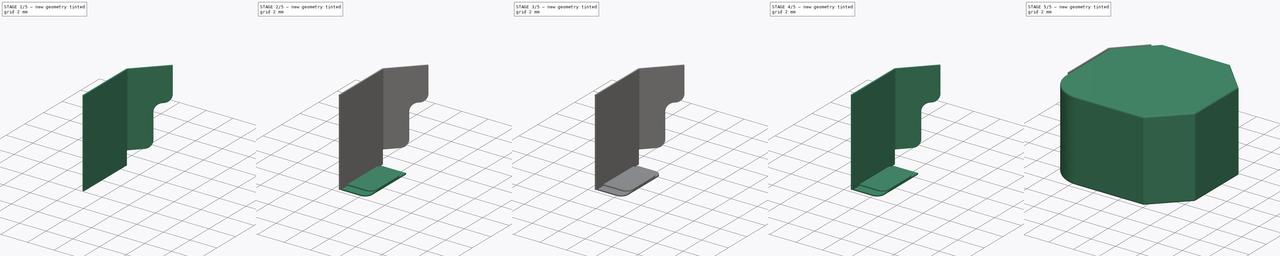
[diagram: build sequence overview — one tinted view per stage of 5, left to right]
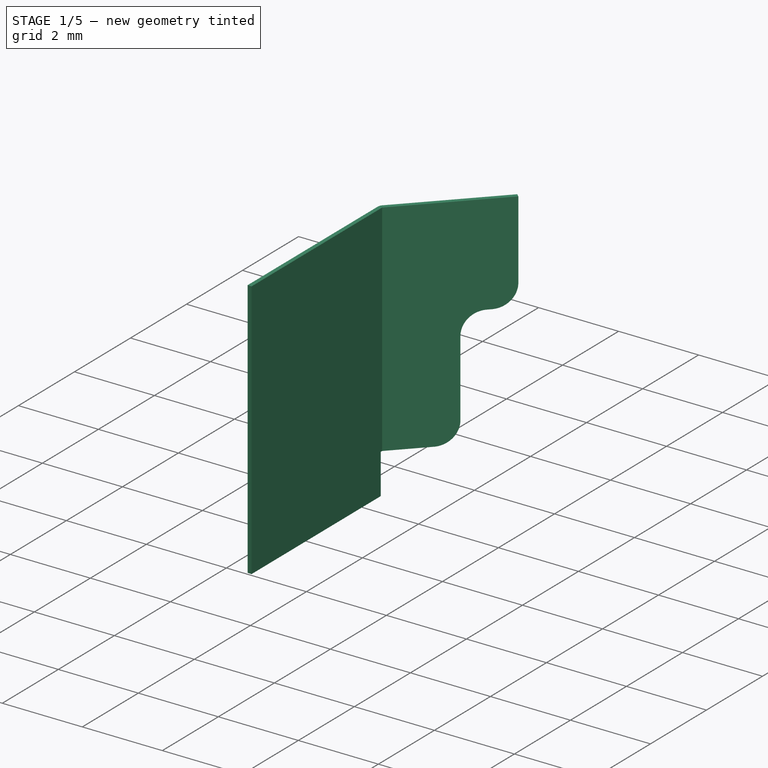
[diagram: stage 1 of 5 — iso view after this stage's code; geometry added in this stage tinted green]
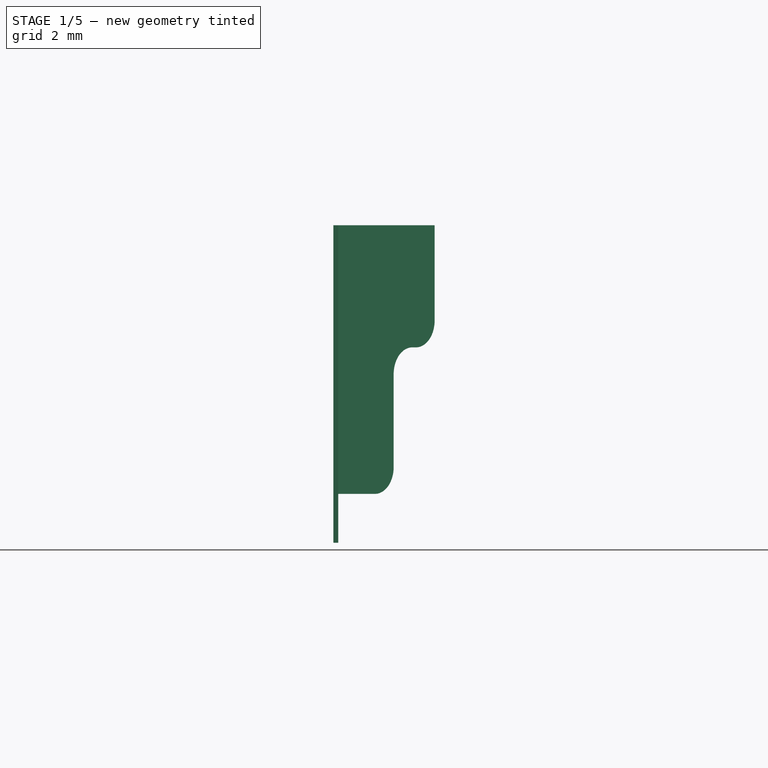
[diagram: stage 1 of 5 — front view after this stage's code; geometry added in this stage tinted green]
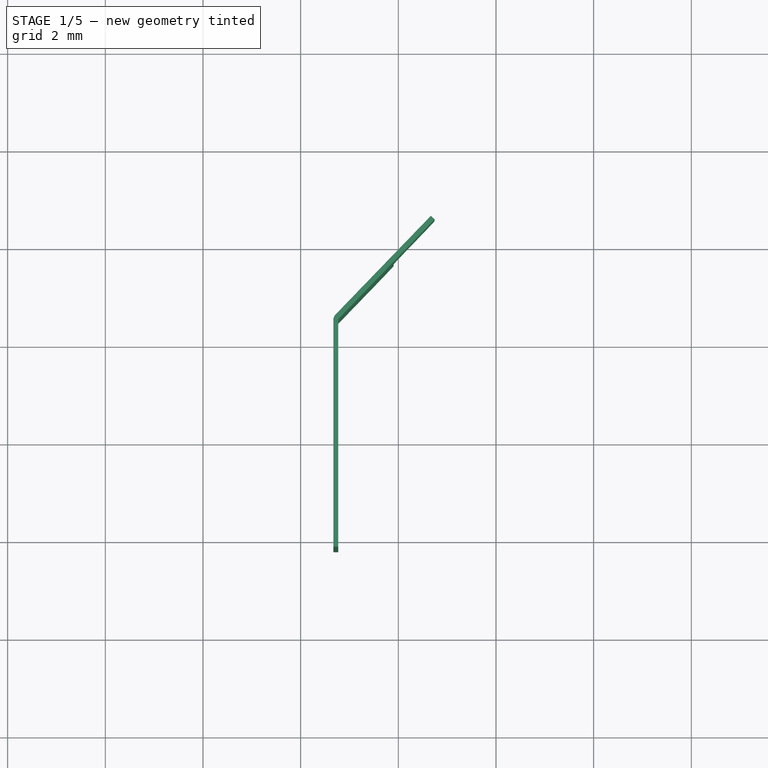
[diagram: stage 1 of 5 — top view after this stage's code; geometry added in this stage tinted green]
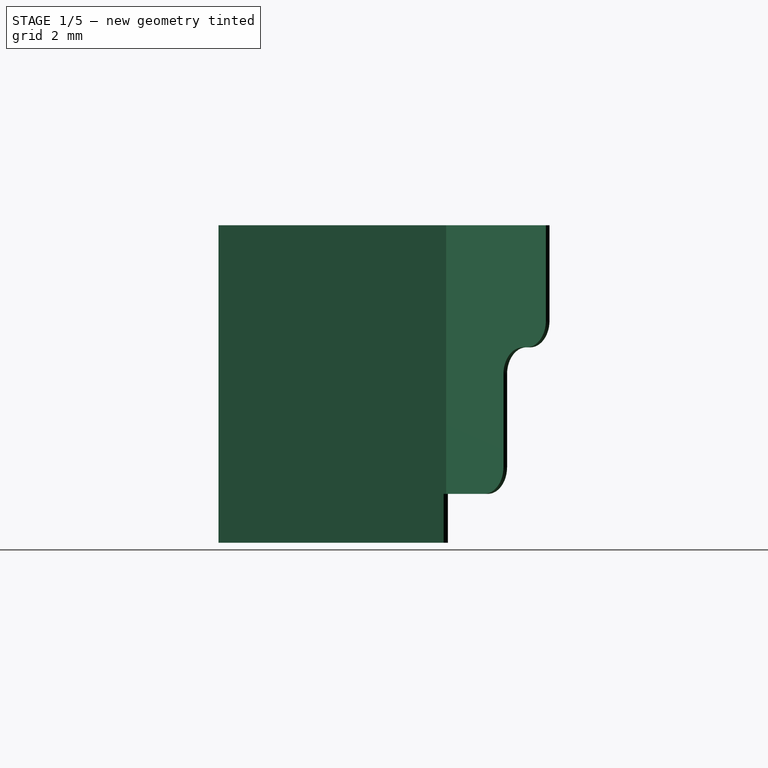
[diagram: stage 1 of 5 — right view after this stage's code; geometry added in this stage tinted green]
FCSTD DOCUMENT  (FreeCAD 0.19R24291 (Git))
Label: tdk-SPM10065VT-D-inductors-for-power-circuits-wound-metal
License: All rights reserved
LicenseURL: http://en.wikipedia.org/wiki/All_rights_reserved
objects: PartDesign::Fillet×16, PartDesign::Pad×11, Sketcher::SketchObject×9, PartDesign::Body×9, App::Part×3, PartDesign::AdditiveSphere×2, PartDesign::Pocket×2
note: 80 computed .brp shape members not serialized (recipe doc carries the construction recipe); baked Part::Feature solids carry a one-line shape summary decoded from their .brp

FEATURE [PartDesign::Body] Body003  label="MainPart"
  Group = -> [Sketch001,Pad001,Pad002,Pad003,Fillet002,Sketch004,Pocket,Fillet008]
  Origin = -> Origin004
  Tip = -> Fillet008
FEATURE [App::Part] Part001  label="Electrode1"
  Group = -> [Body003,Body004,Body005]
  Origin = -> Origin005
  Placement = pos=(0,0,0.1) rot=(0,0,1;0rad)
FEATURE [Sketcher::SketchObject] Sketch005
  FullyConstrained = false
  MapMode = 5
  Support = -> [XY_Plane008]
  sketch-geometry (6):
    g0: LineSegment StartX=-5.33 StartY=-2.2 StartZ=0 EndX=-5.33 EndY=2.51 EndZ=0
    g1: LineSegment StartX=-5.23 StartY=-2.2 StartZ=0 EndX=-5.23 EndY=2.46 EndZ=0
    g2: LineSegment StartX=-3.33283 StartY=4.57813 StartZ=0 EndX=-5.33 EndY=2.51 EndZ=0
    g3: LineSegment StartX=-5.33 StartY=-2.2 StartZ=0 EndX=-5.23 EndY=-2.2 EndZ=0
    g4: LineSegment StartX=-3.33283 StartY=4.57813 StartZ=0 EndX=-3.2561 EndY=4.50404 EndZ=0
    g5: LineSegment StartX=-3.2561 StartY=4.50404 StartZ=0 EndX=-5.23 EndY=2.46 EndZ=0
  constraints (17):
    c: Vertical(g0)
    c: Vertical(g1)
    c: Coincident(g2,g0)
    c: Coincident(g3,g0)
    c: Coincident(g3,g1)
    c: Horizontal(g3)
    c: Coincident(g4,g2)
    c: Coincident(g5,g4)
    c: Coincident(g5,g1)
    c: Distance(g3) = 0.1
    c: DistanceX(g-2,g1) = -5.23
    c: DistanceY(g-1,g1) = 2.46
    c: DistanceY(g1,g0) = 0.05
    c: Perpendicular(g5,g4)
    c: Perpendicular(g2,g4)
    c: Angle(g1,g5) = 2.37365
    c: DistanceY(g0,g-1) = 2.2
FEATURE [PartDesign::Pad] Pad006
  Direction = (1,1,1)
  Length = 0.1
  Length2 = 100
  Profile = -> Sketch005
  Type = 0
FEATURE [PartDesign::Pad] Pad007
  BaseFeature = -> Pad006
  Direction = (1,1,1)
  Length = 6.3
  Length2 = 100
  Profile = -> Pad006 [Face8]
  Type = 0
FEATURE [PartDesign::Pad] Pad008
  BaseFeature = -> Pad007
  Direction = (1,1,1)
  Length = 0.1
  Length2 = 100
  Profile = -> Pad007 [Face11]
  Type = 0
FEATURE [PartDesign::Fillet] Fillet009
  Base = -> Pad008 [Edge5,Edge31,Edge19]
  BaseFeature = -> Pad008
  Radius = 0.15
  SupportTransform = false
FEATURE [PartDesign::Body] Body008  label="TopPart001"
  Group = -> [Sketch007,Pad010,Fillet013,Fillet014]
  Origin = -> Origin011
  Placement = pos=(0,0,6.5) rot=(0,0,1;0rad)
  Tip = -> Fillet014
FEATURE [Sketcher::SketchObject] Sketch008
  FullyConstrained = true
  MapMode = 5
  Placement = pos=(-4.01224,3.87458,0) rot=(-0.287479,0.677258,0.677258;3.70145rad)
  Support = -> [Fillet009]
  sketch-geometry (6):
    g0: LineSegment StartX=1.9 StartY=-0.1 StartZ=0 EndX=1.9 EndY=1 EndZ=0
    g1: LineSegment StartX=1.9 StartY=1 StartZ=0 EndX=0.23 EndY=1 EndZ=0
    g2: LineSegment StartX=0.23 StartY=1 StartZ=0 EndX=0.23 EndY=4 EndZ=0
    g3: LineSegment StartX=-1 StartY=4 StartZ=0 EndX=-1 EndY=-0.1 EndZ=0
    g4: LineSegment StartX=-1 StartY=-0.1 StartZ=0 EndX=1.9 EndY=-0.1 EndZ=0
    g5: LineSegment StartX=0.23 StartY=4 StartZ=0 EndX=-1 EndY=4 EndZ=0
  constraints (18):
    c: Vertical(g0)
    c: Coincident(g1,g0)
    c: Horizontal(g1)
    c: Coincident(g2,g1)
    c: Vertical(g2)
    c: Vertical(g3)
    c: Coincident(g4,g3)
    c: Coincident(g4,g0)
    c: Horizontal(g4)
    c: Coincident(g5,g2)
    c: Coincident(g5,g3)
    c: Horizontal(g5)
    c: Distance(g3,g0) = 2.9
    c: DistanceX(g-1,g0) = 1.9
    c: Distance(g1) = 1.67
    c: Distance(g3) = 4.1
    c: Distance(g2) = 3
    c: DistanceY(g-1,g0) = 1
FEATURE [PartDesign::Pocket] Pocket001
  BaseFeature = -> Fillet009
  Length = 5
  Length2 = 100
  Profile = -> Sketch008
  Type = 0
FEATURE [PartDesign::Fillet] Fillet015
  Base = -> Pocket001 [Edge54,Edge52,Edge33]
  BaseFeature = -> Pocket001
  Radius = 0.55
  SupportTransform = false
FEATURE [PartDesign::Body] Body006  label="MainPart001"
  Group = -> [Sketch005,Pad006,Pad007,Pad008,Fillet009,Sketch008,Pocket001,Fillet015]
  Origin = -> Origin008
  Tip = -> Fillet015
FEATURE [App::Part] Part002  label="Electrode2"
  Group = -> [Body006,Body007,Body008]
  Origin = -> Origin009
  Placement = pos=(0,0,0.1) rot=(0,0,1;3.14159rad)
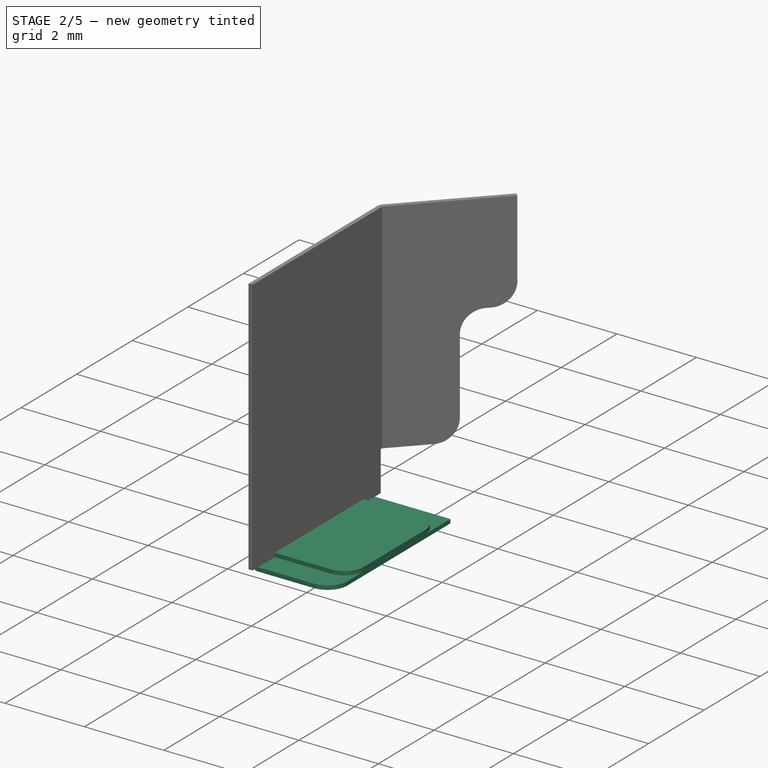
[diagram: stage 2 of 5 — iso view after this stage's code; geometry added in this stage tinted green]
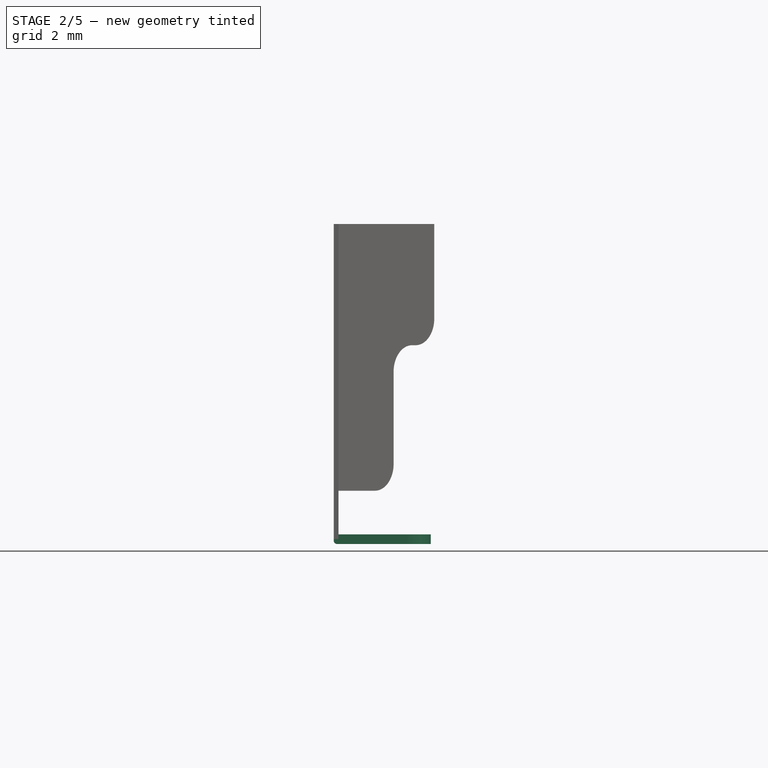
[diagram: stage 2 of 5 — front view after this stage's code; geometry added in this stage tinted green]
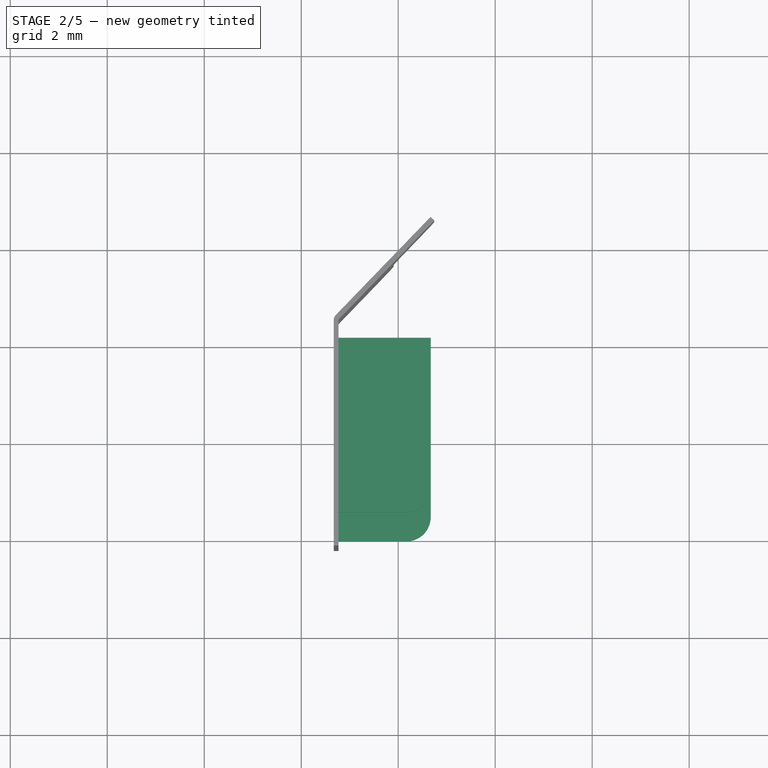
[diagram: stage 2 of 5 — top view after this stage's code; geometry added in this stage tinted green]
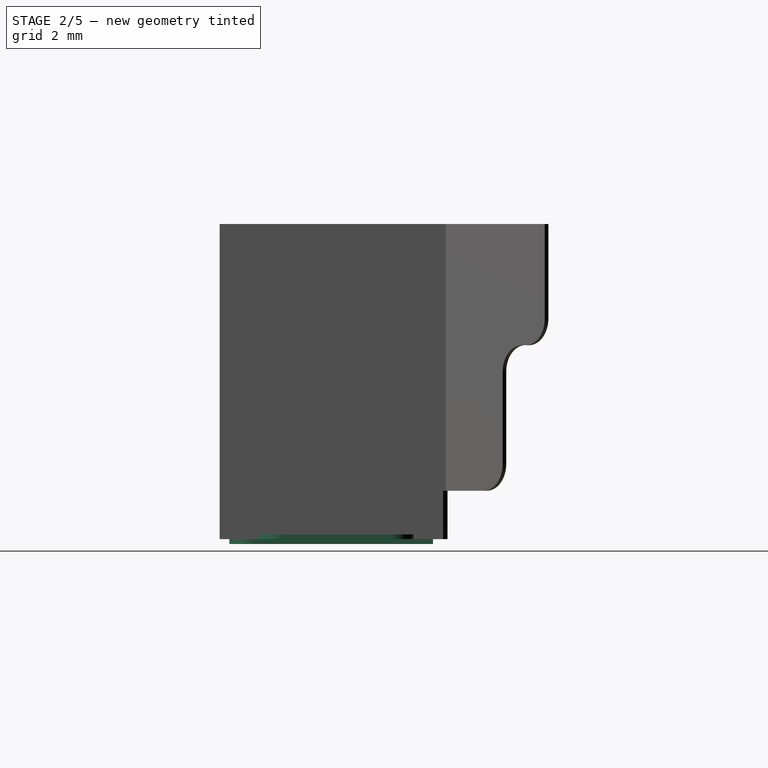
[diagram: stage 2 of 5 — right view after this stage's code; geometry added in this stage tinted green]
FEATURE [Sketcher::SketchObject] Sketch006
  FullyConstrained = true
  MapMode = 5
  Support = -> [XY_Plane010]
  sketch-geometry (4):
    g0: LineSegment StartX=-5.33 StartY=2.2 StartZ=0 EndX=-3.33 EndY=2.2 EndZ=0
    g1: LineSegment StartX=-3.33 StartY=2.2 StartZ=0 EndX=-3.33 EndY=-2 EndZ=0
    g2: LineSegment StartX=-3.33 StartY=-2 StartZ=0 EndX=-5.33 EndY=-2 EndZ=0
    g3: LineSegment StartX=-5.33 StartY=-2 StartZ=0 EndX=-5.33 EndY=2.2 EndZ=0
  constraints (12):
    c: Coincident(g0,g1)
    c: Coincident(g1,g2)
    c: Coincident(g2,g3)
    c: Coincident(g3,g0)
    c: Horizontal(g0)
    c: Horizontal(g2)
    c: Vertical(g1)
    c: Vertical(g3)
    c: Distance(g0,g2) = 4.2
    c: Distance(g2,g1) = 2
    c: DistanceX(g2,g-1) = 5.33
    c: DistanceY(g1,g-1) = 2
FEATURE [PartDesign::Pad] Pad009
  Direction = (0,1,1)
  Length = 0.1
  Length2 = 100
  Profile = -> Sketch006
  Reversed = true
  Type = 0
FEATURE [PartDesign::Fillet] Fillet010
  Base = -> Pad009 [Edge12]
  BaseFeature = -> Pad009
  Radius = 0.07
  SupportTransform = false
FEATURE [PartDesign::Fillet] Fillet011
  Base = -> Fillet010 [Edge15]
  BaseFeature = -> Fillet010
  Radius = 0.5
  SupportTransform = false
FEATURE [PartDesign::Body] Body007  label="BottomPart001"
  Group = -> [Sketch006,Pad009,Fillet010,Fillet011,Fillet012]
  Origin = -> Origin010
  Tip = -> Fillet012
FEATURE [Sketcher::SketchObject] Sketch007
  FullyConstrained = true
  MapMode = 5
  Support = -> [XY_Plane011]
  sketch-geometry (4):
    g0: LineSegment StartX=-3.33 StartY=1.8 StartZ=0 EndX=-5.33 EndY=1.8 EndZ=0
    g1: LineSegment StartX=-5.33 StartY=1.8 StartZ=0 EndX=-5.33 EndY=-1.4 EndZ=0
    g2: LineSegment StartX=-5.33 StartY=-1.4 StartZ=0 EndX=-3.33 EndY=-1.4 EndZ=0
    g3: LineSegment StartX=-3.33 StartY=-1.4 StartZ=0 EndX=-3.33 EndY=1.8 EndZ=0
  constraints (12):
    c: Coincident(g0,g1)
    c: Coincident(g1,g2)
    c: Coincident(g2,g3)
    c: Coincident(g3,g0)
    c: Horizontal(g0)
    c: Horizontal(g2)
    c: Vertical(g1)
    c: Vertical(g3)
    c: Distance(g1,g0) = 3.2
    c: Distance(g1,g2) = 2
    c: DistanceY(g1,g-1) = 1.4
    c: DistanceX(g1,g-1) = 5.33
FEATURE [PartDesign::Pad] Pad010
  Direction = (1,1,1)
  Length = 0.1
  Length2 = 100
  Profile = -> Sketch007
  Type = 0
FEATURE [PartDesign::Fillet] Fillet013
  Base = -> Pad010 [Edge8,Edge1]
  BaseFeature = -> Pad010
  Radius = 0.5
  SupportTransform = false
FEATURE [PartDesign::Fillet] Fillet014
  Base = -> Fillet013 [Edge13]
  BaseFeature = -> Fillet013
  Radius = 0.07
  SupportTransform = false
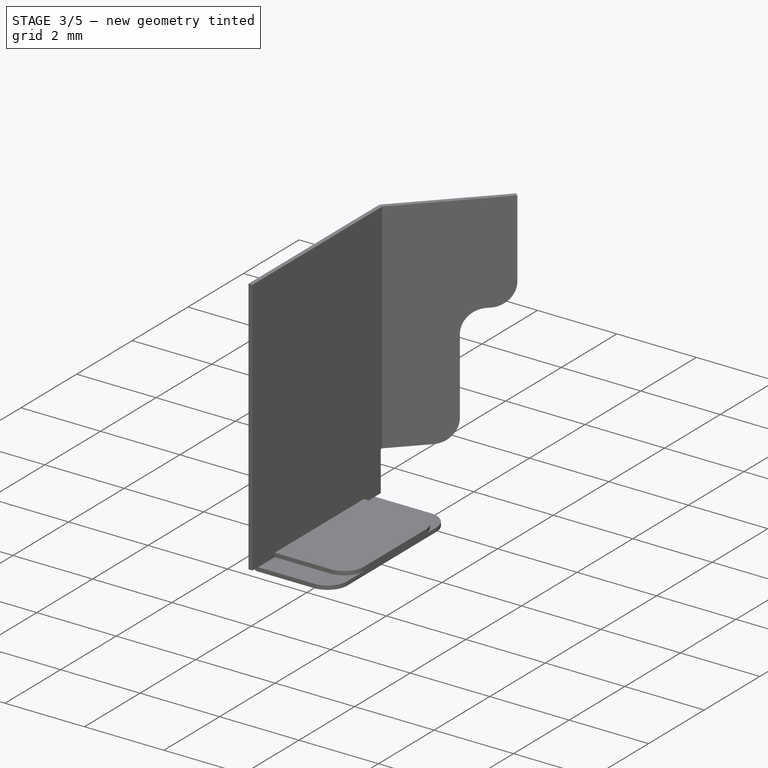
[diagram: stage 3 of 5 — iso view after this stage's code; geometry added in this stage tinted green]
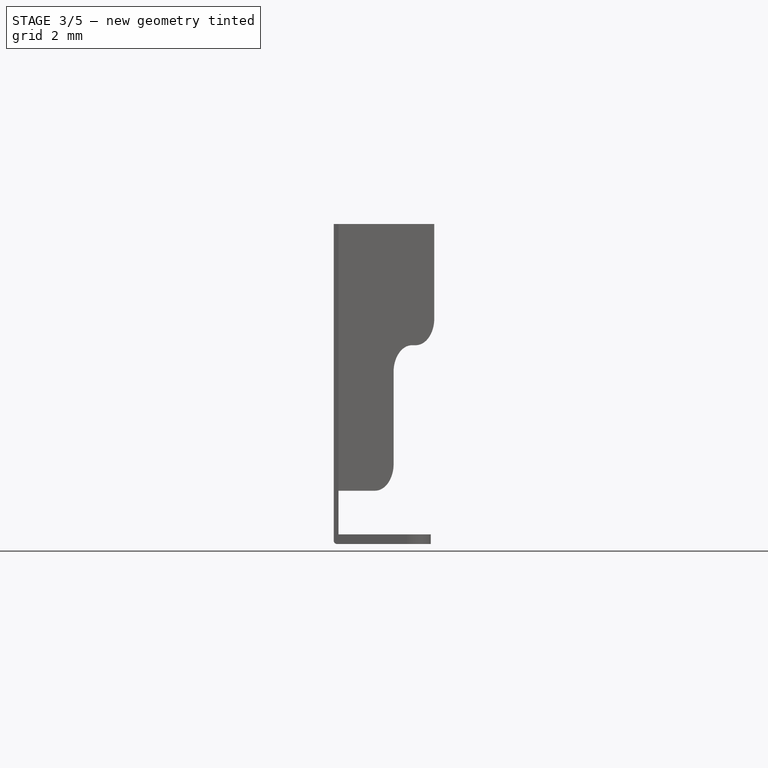
[diagram: stage 3 of 5 — front view after this stage's code; geometry added in this stage tinted green]
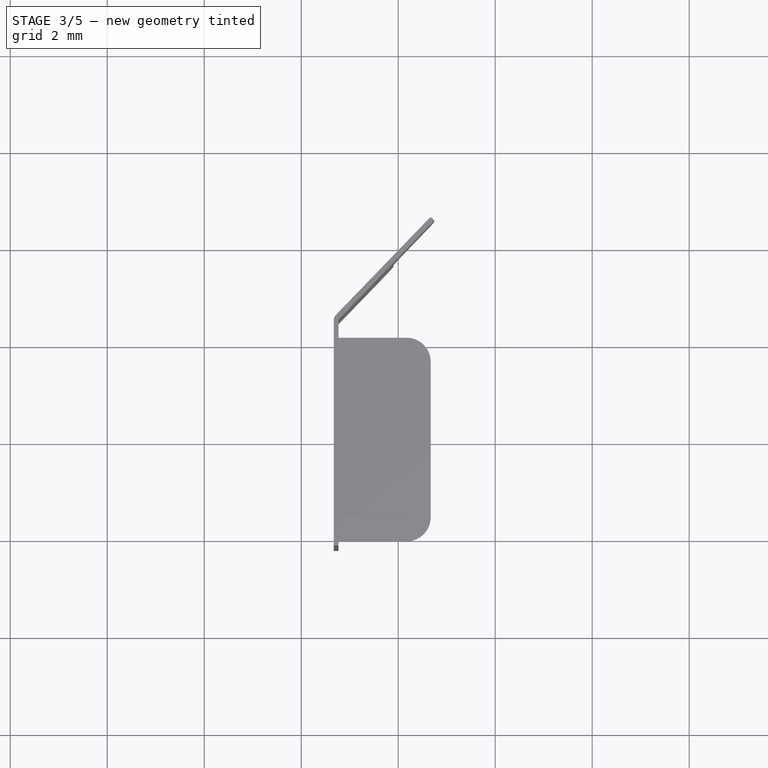
[diagram: stage 3 of 5 — top view after this stage's code; geometry added in this stage tinted green]
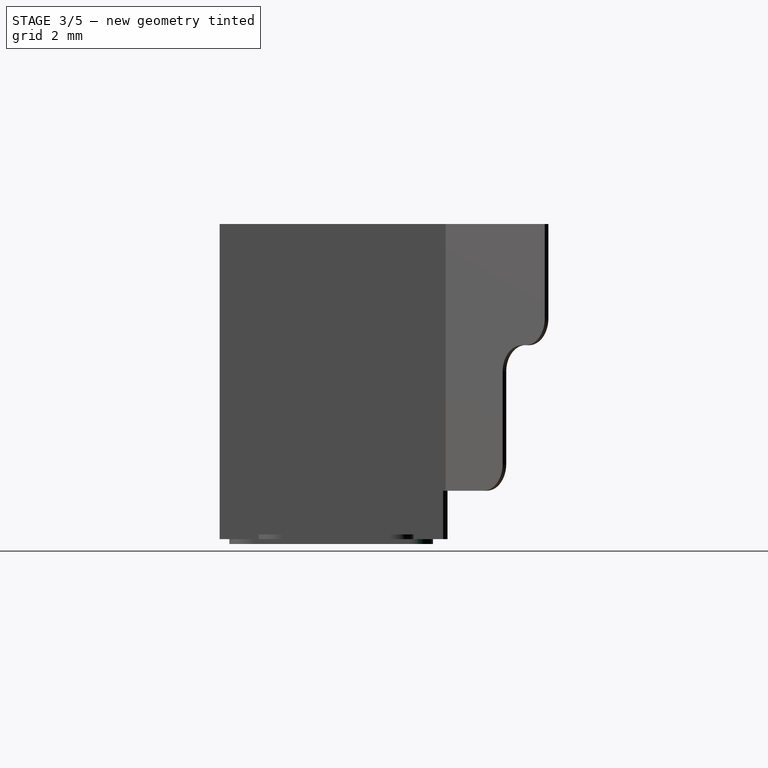
[diagram: stage 3 of 5 — right view after this stage's code; geometry added in this stage tinted green]
FEATURE [PartDesign::Body] Body002  label="WireEnd2"
  Group = -> [Sphere001]
  Origin = -> Origin003
  Placement = pos=(4,-3.75,4) rot=(0,0,1;0rad)
  Tip = -> Sphere001
FEATURE [App::Part] Part
  Group = -> [Body,Body001,Body002]
  Origin = -> Origin
  Placement = pos=(0,0,0.1) rot=(0,0,1;0rad)
FEATURE [Sketcher::SketchObject] Sketch001
  FullyConstrained = false
  MapMode = 5
  Support = -> [XY_Plane004]
  sketch-geometry (6):
    g0: LineSegment StartX=-5.33 StartY=-2.2 StartZ=0 EndX=-5.33 EndY=2.51 EndZ=0
    g1: LineSegment StartX=-5.23 StartY=-2.2 StartZ=0 EndX=-5.23 EndY=2.46 EndZ=0
    g2: LineSegment StartX=-3.33283 StartY=4.57813 StartZ=0 EndX=-5.33 EndY=2.51 EndZ=0
    g3: LineSegment StartX=-5.33 StartY=-2.2 StartZ=0 EndX=-5.23 EndY=-2.2 EndZ=0
    g4: LineSegment StartX=-3.33283 StartY=4.57813 StartZ=0 EndX=-3.2561 EndY=4.50404 EndZ=0
    g5: LineSegment StartX=-3.2561 StartY=4.50404 StartZ=0 EndX=-5.23 EndY=2.46 EndZ=0
  constraints (17):
    c: Vertical(g0)
    c: Vertical(g1)
    c: Coincident(g2,g0)
    c: Coincident(g3,g0)
    c: Coincident(g3,g1)
    c: Horizontal(g3)
    c: Coincident(g4,g2)
    c: Coincident(g5,g4)
    c: Coincident(g5,g1)
    c: Distance(g3) = 0.1
    c: DistanceX(g-2,g1) = -5.23
    c: DistanceY(g-1,g1) = 2.46
    c: DistanceY(g1,g0) = 0.05
    c: Perpendicular(g5,g4)
    c: Perpendicular(g2,g4)
    c: Angle(g1,g5) = 2.37365
    c: DistanceY(g0,g-1) = 2.2
FEATURE [PartDesign::Pad] Pad001
  Direction = (1,1,1)
  Length = 0.1
  Length2 = 100
  Profile = -> Sketch001
  Type = 0
FEATURE [PartDesign::Pad] Pad002
  BaseFeature = -> Pad001
  Direction = (1,1,1)
  Length = 6.3
  Length2 = 100
  Profile = -> Pad001 [Face8]
  Type = 0
FEATURE [PartDesign::Pad] Pad003
  BaseFeature = -> Pad002
  Direction = (1,1,1)
  Length = 0.1
  Length2 = 100
  Profile = -> Pad002 [Face11]
  Type = 0
FEATURE [PartDesign::Fillet] Fillet002
  Base = -> Pad003 [Edge5,Edge31,Edge19]
  BaseFeature = -> Pad003
  Radius = 0.15
  SupportTransform = false
FEATURE [PartDesign::Body] Body005  label="TopPart"
  Group = -> [Sketch003,Pad005,Fillet006,Fillet007]
  Origin = -> Origin007
  Placement = pos=(0,0,6.5) rot=(0,0,1;0rad)
  Tip = -> Fillet007
FEATURE [Sketcher::SketchObject] Sketch004
  FullyConstrained = true
  MapMode = 5
  Placement = pos=(-4.01224,3.87458,0) rot=(-0.287479,0.677258,0.677258;3.70145rad)
  Support = -> [Fillet002]
  sketch-geometry (6):
    g0: LineSegment StartX=1.9 StartY=-0.1 StartZ=0 EndX=1.9 EndY=1 EndZ=0
    g1: LineSegment StartX=1.9 StartY=1 StartZ=0 EndX=0.23 EndY=1 EndZ=0
    g2: LineSegment StartX=0.23 StartY=1 StartZ=0 EndX=0.23 EndY=4 EndZ=0
    g3: LineSegment StartX=-1 StartY=4 StartZ=0 EndX=-1 EndY=-0.1 EndZ=0
    g4: LineSegment StartX=-1 StartY=-0.1 StartZ=0 EndX=1.9 EndY=-0.1 EndZ=0
    g5: LineSegment StartX=0.23 StartY=4 StartZ=0 EndX=-1 EndY=4 EndZ=0
  constraints (18):
    c: Vertical(g0)
    c: Coincident(g1,g0)
    c: Horizontal(g1)
    c: Coincident(g2,g1)
    c: Vertical(g2)
    c: Vertical(g3)
    c: Coincident(g4,g3)
    c: Coincident(g4,g0)
    c: Horizontal(g4)
    c: Coincident(g5,g2)
    c: Coincident(g5,g3)
    c: Horizontal(g5)
    c: Distance(g3,g0) = 2.9
    c: DistanceX(g-1,g0) = 1.9
    c: Distance(g1) = 1.67
    c: Distance(g3) = 4.1
    c: Distance(g2) = 3
    c: DistanceY(g-1,g0) = 1
FEATURE [PartDesign::Pocket] Pocket
  BaseFeature = -> Fillet002
  Length = 5
  Length2 = 100
  Profile = -> Sketch004
  Type = 0
FEATURE [PartDesign::Fillet] Fillet008
  Base = -> Pocket [Edge54,Edge52,Edge33]
  BaseFeature = -> Pocket
  Radius = 0.55
  SupportTransform = false
FEATURE [PartDesign::Fillet] Fillet012
  Base = -> Fillet011 [Edge7]
  BaseFeature = -> Fillet011
  Radius = 0.5
  SupportTransform = false
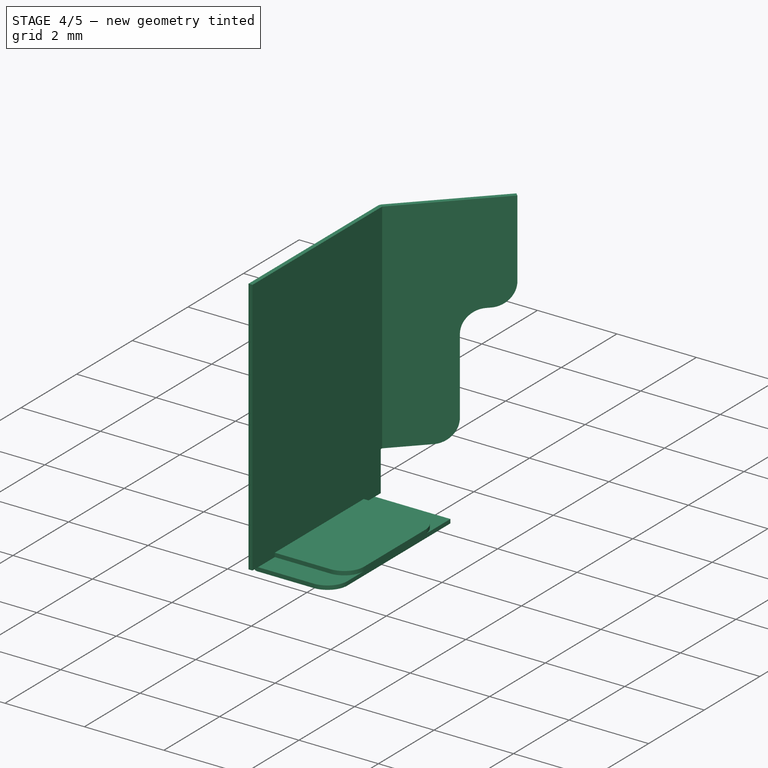
[diagram: stage 4 of 5 — iso view after this stage's code; geometry added in this stage tinted green]
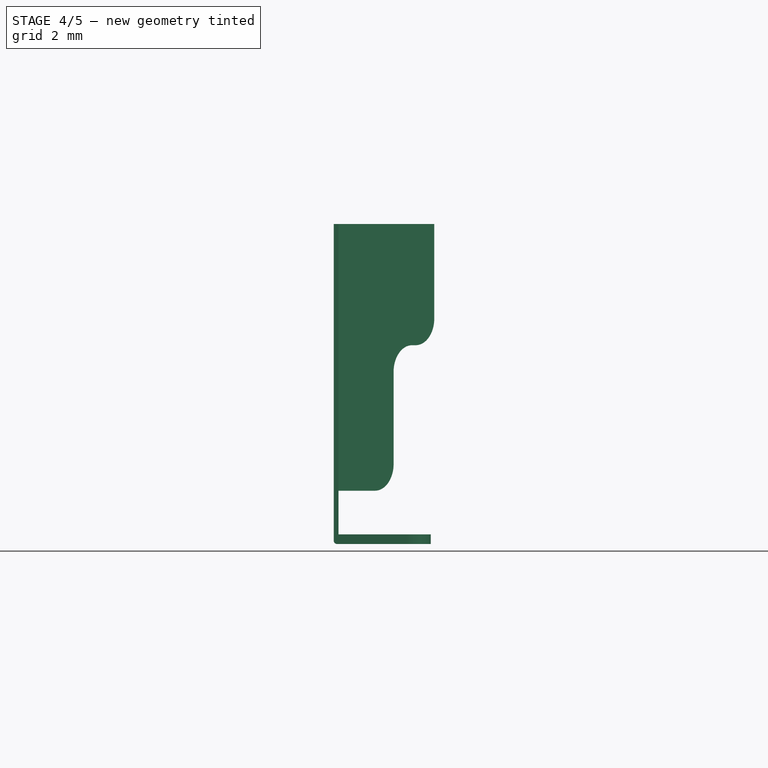
[diagram: stage 4 of 5 — front view after this stage's code; geometry added in this stage tinted green]
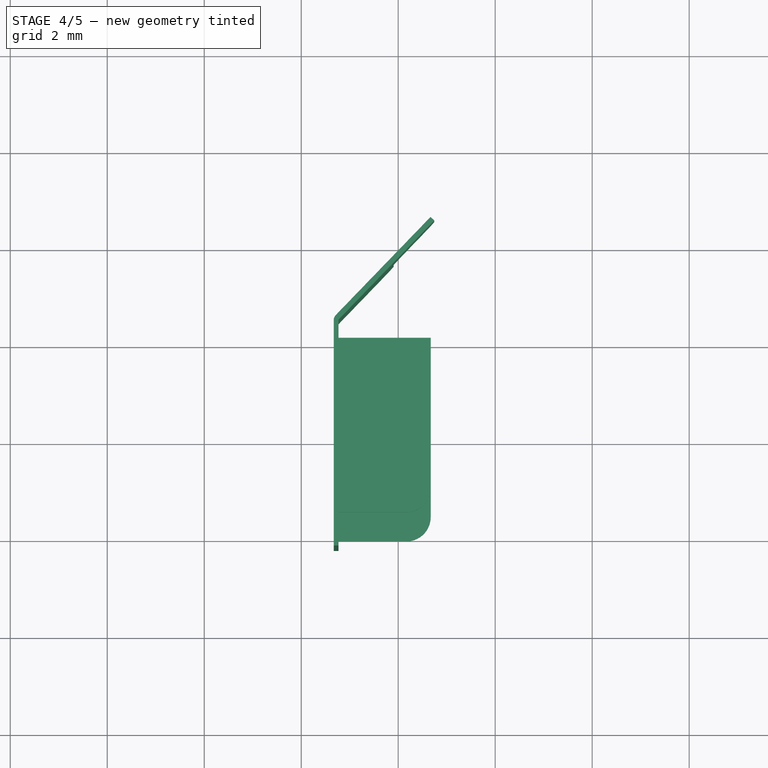
[diagram: stage 4 of 5 — top view after this stage's code; geometry added in this stage tinted green]
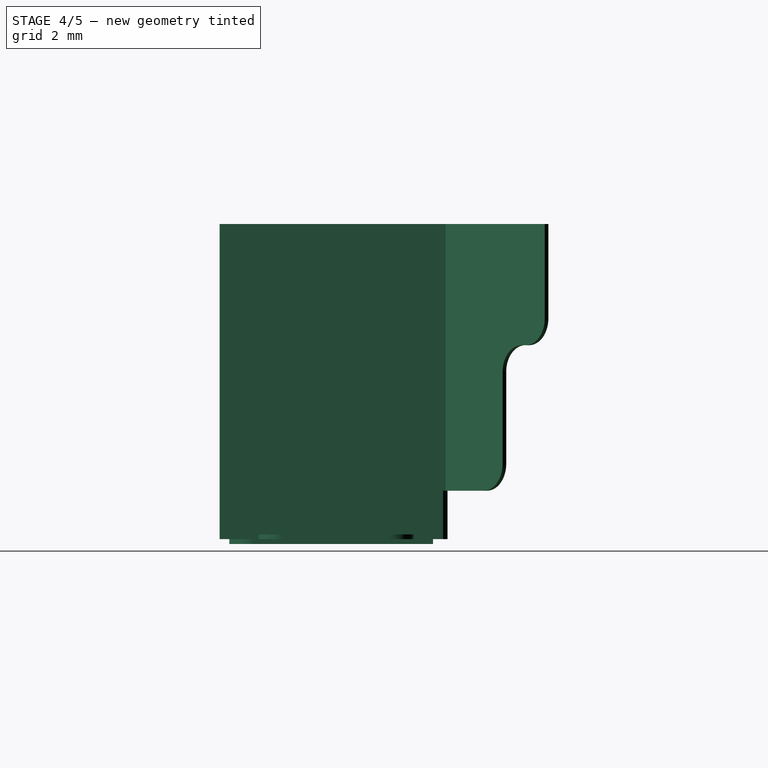
[diagram: stage 4 of 5 — right view after this stage's code; geometry added in this stage tinted green]
FEATURE [Sketcher::SketchObject] Sketch002
  FullyConstrained = true
  MapMode = 5
  Support = -> [XY_Plane006]
  sketch-geometry (4):
    g0: LineSegment StartX=-5.33 StartY=2.2 StartZ=0 EndX=-3.33 EndY=2.2 EndZ=0
    g1: LineSegment StartX=-3.33 StartY=2.2 StartZ=0 EndX=-3.33 EndY=-2 EndZ=0
    g2: LineSegment StartX=-3.33 StartY=-2 StartZ=0 EndX=-5.33 EndY=-2 EndZ=0
    g3: LineSegment StartX=-5.33 StartY=-2 StartZ=0 EndX=-5.33 EndY=2.2 EndZ=0
  constraints (12):
    c: Coincident(g0,g1)
    c: Coincident(g1,g2)
    c: Coincident(g2,g3)
    c: Coincident(g3,g0)
    c: Horizontal(g0)
    c: Horizontal(g2)
    c: Vertical(g1)
    c: Vertical(g3)
    c: Distance(g0,g2) = 4.2
    c: Distance(g2,g1) = 2
    c: DistanceX(g2,g-1) = 5.33
    c: DistanceY(g1,g-1) = 2
FEATURE [PartDesign::Pad] Pad004
  Direction = (0,1,1)
  Length = 0.1
  Length2 = 100
  Profile = -> Sketch002
  Reversed = true
  Type = 0
FEATURE [PartDesign::Fillet] Fillet003
  Base = -> Pad004 [Edge12]
  BaseFeature = -> Pad004
  Radius = 0.07
  SupportTransform = false
FEATURE [PartDesign::Fillet] Fillet004
  Base = -> Fillet003 [Edge15]
  BaseFeature = -> Fillet003
  Radius = 0.5
  SupportTransform = false
FEATURE [PartDesign::Body] Body004  label="BottomPart"
  Group = -> [Sketch002,Pad004,Fillet003,Fillet004,Fillet005]
  Origin = -> Origin006
  Tip = -> Fillet005
FEATURE [Sketcher::SketchObject] Sketch003
  FullyConstrained = true
  MapMode = 5
  Support = -> [XY_Plane007]
  sketch-geometry (4):
    g0: LineSegment StartX=-3.33 StartY=1.8 StartZ=0 EndX=-5.33 EndY=1.8 EndZ=0
    g1: LineSegment StartX=-5.33 StartY=1.8 StartZ=0 EndX=-5.33 EndY=-1.4 EndZ=0
    g2: LineSegment StartX=-5.33 StartY=-1.4 StartZ=0 EndX=-3.33 EndY=-1.4 EndZ=0
    g3: LineSegment StartX=-3.33 StartY=-1.4 StartZ=0 EndX=-3.33 EndY=1.8 EndZ=0
  constraints (12):
    c: Coincident(g0,g1)
    c: Coincident(g1,g2)
    c: Coincident(g2,g3)
    c: Coincident(g3,g0)
    c: Horizontal(g0)
    c: Horizontal(g2)
    c: Vertical(g1)
    c: Vertical(g3)
    c: Distance(g1,g0) = 3.2
    c: Distance(g1,g2) = 2
    c: DistanceY(g1,g-1) = 1.4
    c: DistanceX(g1,g-1) = 5.33
FEATURE [PartDesign::Pad] Pad005
  Direction = (1,1,1)
  Length = 0.1
  Length2 = 100
  Profile = -> Sketch003
  Type = 0
FEATURE [PartDesign::Fillet] Fillet006
  Base = -> Pad005 [Edge8,Edge1]
  BaseFeature = -> Pad005
  Radius = 0.5
  SupportTransform = false
FEATURE [PartDesign::Fillet] Fillet007
  Base = -> Fillet006 [Edge13]
  BaseFeature = -> Fillet006
  Radius = 0.07
  SupportTransform = false
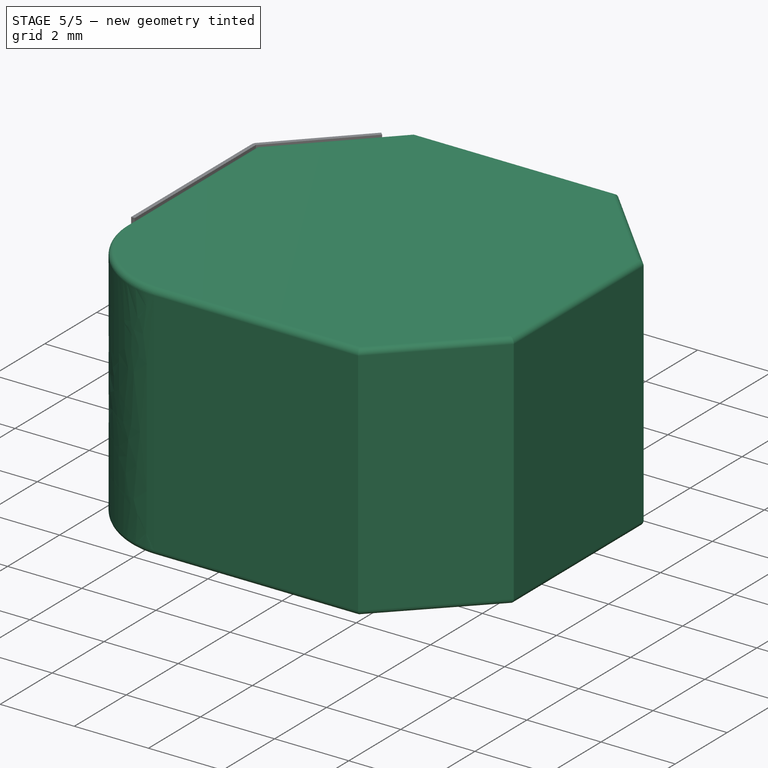
[diagram: stage 5 of 5 — iso view after this stage's code; geometry added in this stage tinted green]
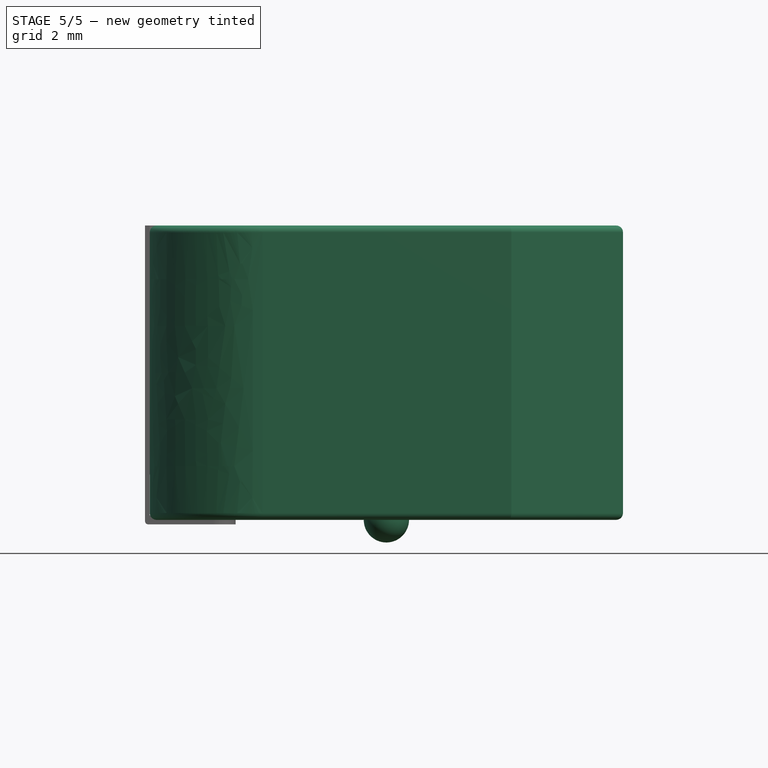
[diagram: stage 5 of 5 — front view after this stage's code; geometry added in this stage tinted green]
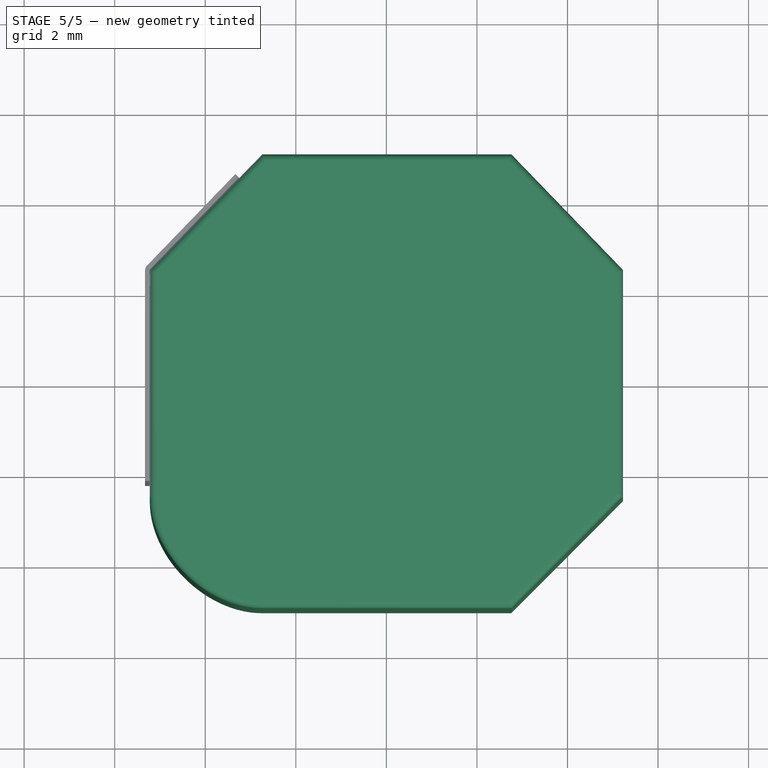
[diagram: stage 5 of 5 — top view after this stage's code; geometry added in this stage tinted green]
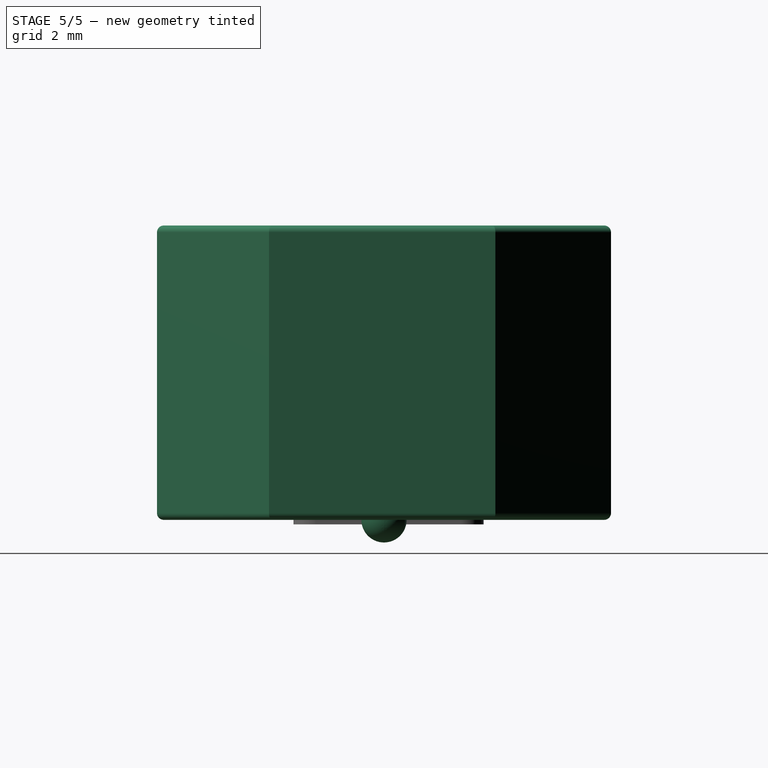
[diagram: stage 5 of 5 — right view after this stage's code; geometry added in this stage tinted green]
FEATURE [Sketcher::SketchObject] Sketch
  FullyConstrained = false
  MapMode = 5
  Support = -> [XY_Plane001]
  sketch-geometry (14):
    g0: LineSegment StartX=-5.22543 StartY=-2.53984 StartZ=0 EndX=-5.22543 EndY=2.46016 EndZ=0
    g1: LineSegment StartX=-2.73961 StartY=5.01385 StartZ=0 EndX=2.76039 EndY=5.01385 EndZ=0
    g2: LineSegment StartX=5.22543 StartY=2.46016 StartZ=0 EndX=5.22543 EndY=-2.53984 EndZ=0
    g3: LineSegment StartX=2.76039 StartY=-5.01385 StartZ=0 EndX=-2.73961 EndY=-5.01385 EndZ=0
    g4: LineSegment StartX=-5.22543 StartY=2.46016 StartZ=0 EndX=-2.73961 EndY=5.01385 EndZ=0
    g5: LineSegment StartX=2.76039 StartY=5.01385 StartZ=0 EndX=5.22543 EndY=2.46016 EndZ=0
    g6: LineSegment StartX=5.22543 StartY=-2.53984 StartZ=0 EndX=2.76039 EndY=-5.01385 EndZ=0
    g7-g10: Circle x4 (B-spline internal-alignment scaffolding for g11; pole/knot coordinates omitted)
    g11: BSplineCurve PolesCount=4 KnotsCount=2 Degree=3 IsPeriodic=0
    g12: GeomPoint X=-2.73961 Y=-5.01385 Z=0
    g13: GeomPoint X=-5.22543 Y=-2.53984 Z=0
  constraints (29):
    c: Vertical(g0)
    c: Horizontal(g1)
    c: Vertical(g2)
    c: Horizontal(g3)
    c: Coincident(g4,g0)
    c: Coincident(g4,g1)
    c: Coincident(g5,g1)
    c: Coincident(g5,g2)
    c: Coincident(g6,g2)
    c: Coincident(g6,g3)
    c: Coincident(g11,g3)
    c: Weight(g7) = 1
    c: Equal(g7,g8)
    c: Equal(g7,g9)
    c: Equal(g7,g10)
    c: Coincident(g11,g0)
    c: InternalAlignment(g7-g10 -> g11) x4
    c: InternalAlignment(g12,g11)
    c: InternalAlignment(g13,g11)
    c: Distance(g0) = 5
    c: Equal(g0,g2)
    c: Distance(g1) = 5.5
    c: Equal(g1,g3)
    c: Symmetric(g0,g2,g-2)
    c: Symmetric(g1,g3,g-1)
    c: Horizontal(g8,g3)
    c: Vertical(g9,g0)
    c: Distance(g8,g3) = 1.25
    c: Distance(g9,g0) = 1.25
FEATURE [PartDesign::Pad] Pad
  Direction = (1,1,1)
  Length = 6.5
  Length2 = 100
  Profile = -> Sketch
  Type = 0
FEATURE [PartDesign::Fillet] Fillet
  Base = -> Pad [Face10]
  BaseFeature = -> Pad
  Radius = 0.15
  SupportTransform = false
FEATURE [PartDesign::Fillet] Fillet001
  Base = -> Fillet [Face4]
  BaseFeature = -> Fillet
  Radius = 0.15
  SupportTransform = false
FEATURE [PartDesign::Body] Body  label="Shell"
  Group = -> [Sketch,Pad,Fillet,Fillet001]
  Origin = -> Origin001
  Tip = -> Fillet001
FEATURE [PartDesign::AdditiveSphere] Sphere
  Angle1 = -90
  Angle2 = 90
  Angle3 = 360
  AttacherType = Attacher::AttachEngine3D
  Radius = 0.5
FEATURE [PartDesign::Body] Body001  label="WireEnd1"
  Group = -> [Sphere]
  Origin = -> Origin002
  Placement = pos=(-4,3.75,4) rot=(0,0,1;0rad)
  Tip = -> Sphere
FEATURE [PartDesign::AdditiveSphere] Sphere001
  Angle1 = -90
  Angle2 = 90
  Angle3 = 360
  AttacherType = Attacher::AttachEngine3D
  Radius = 0.5
FEATURE [PartDesign::Fillet] Fillet005
  Base = -> Fillet004 [Edge7]
  BaseFeature = -> Fillet004
  Radius = 0.5
  SupportTransform = false
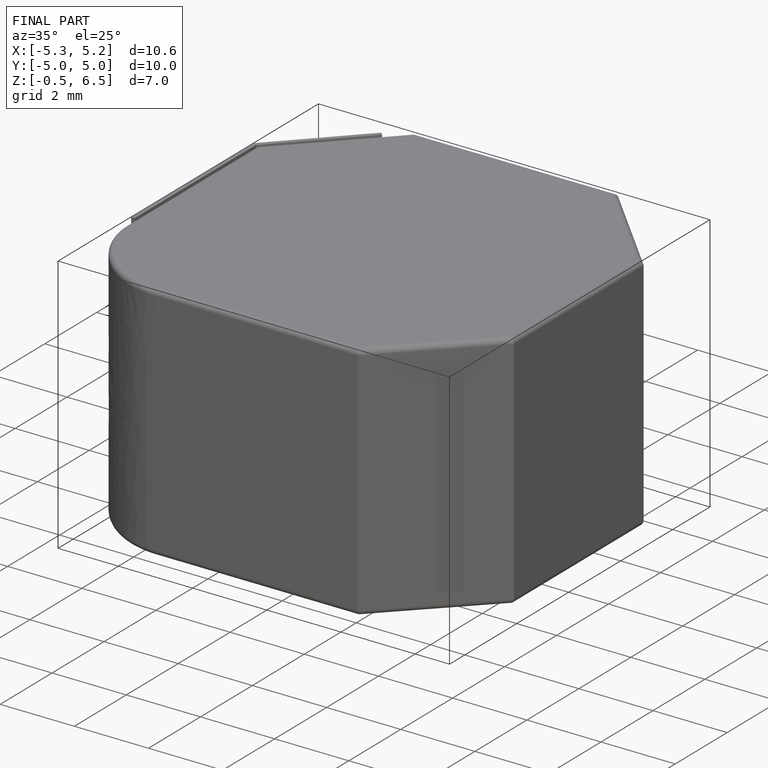
[diagram: finished part — iso view with bounding-box wireframe]
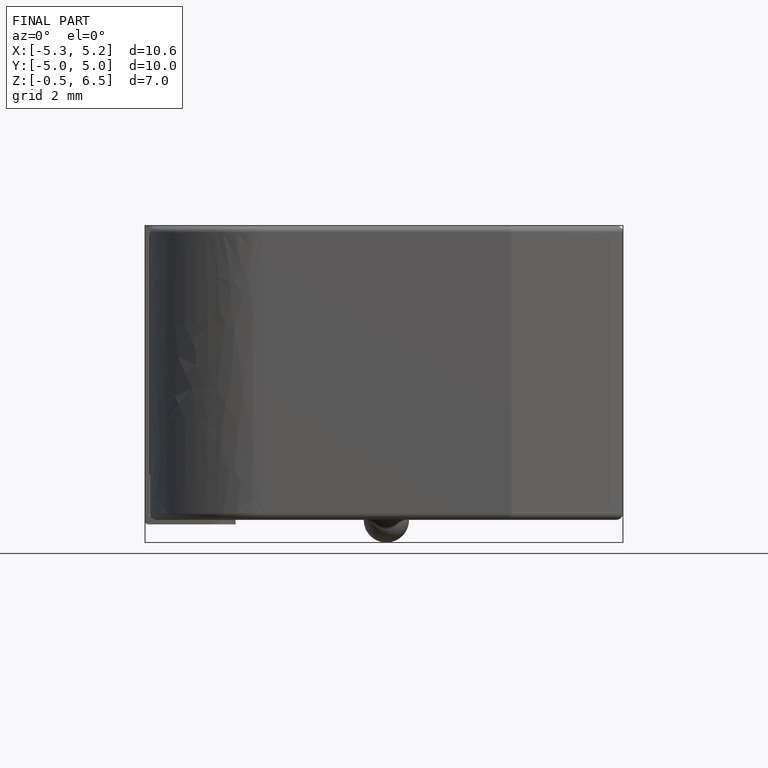
[diagram: finished part — front view with bounding-box wireframe]
